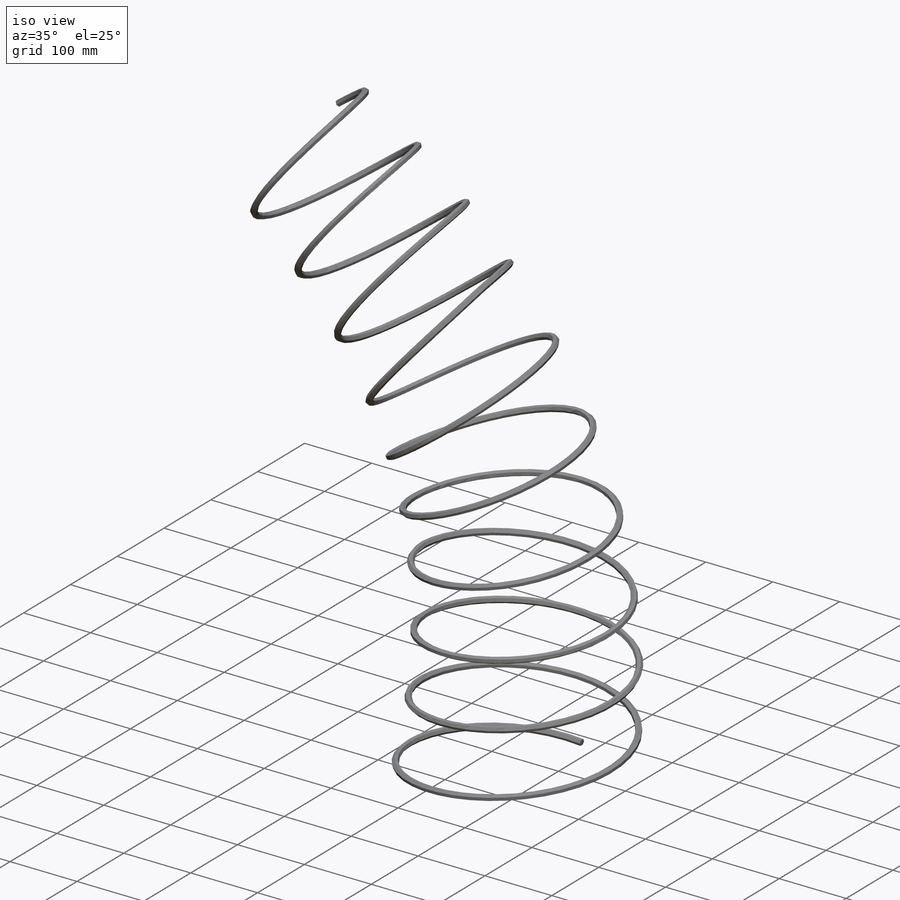
[diagram: iso view]
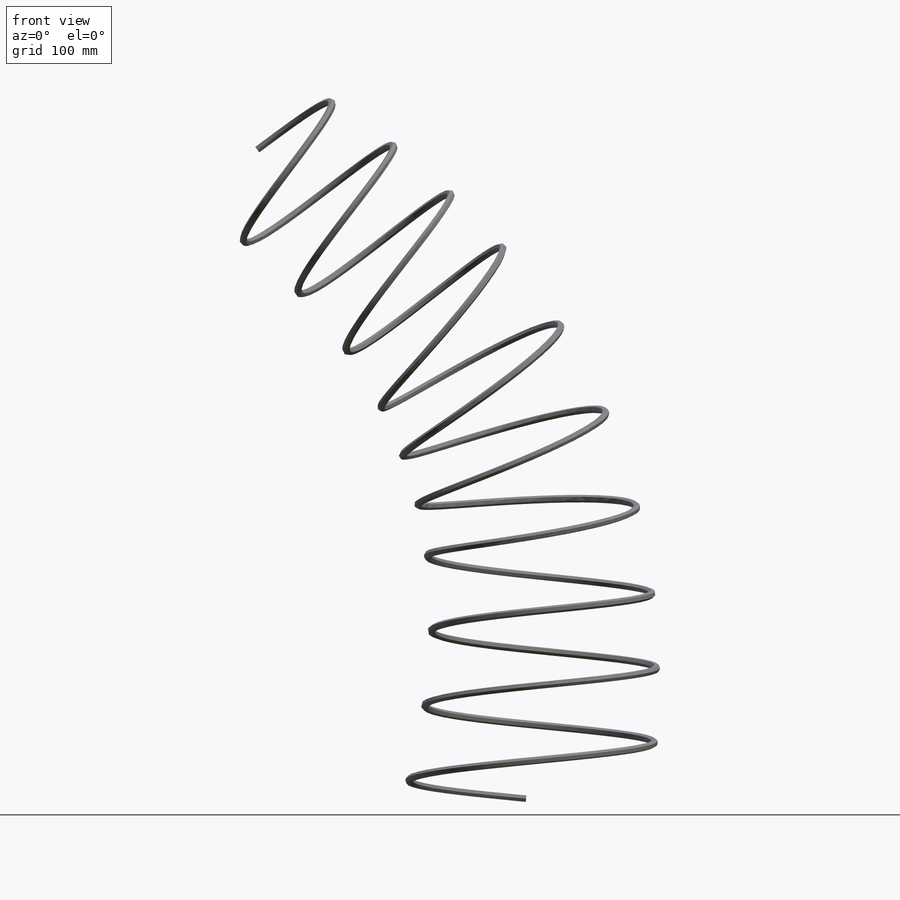
[diagram: front view]
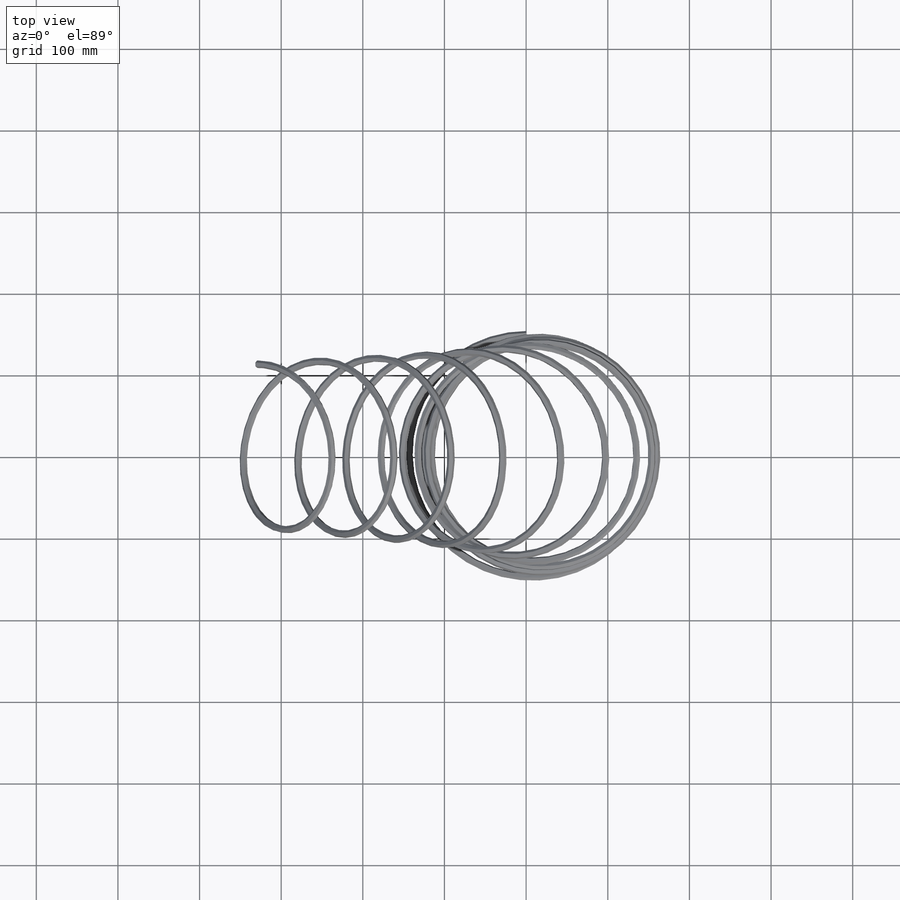
[diagram: top view]
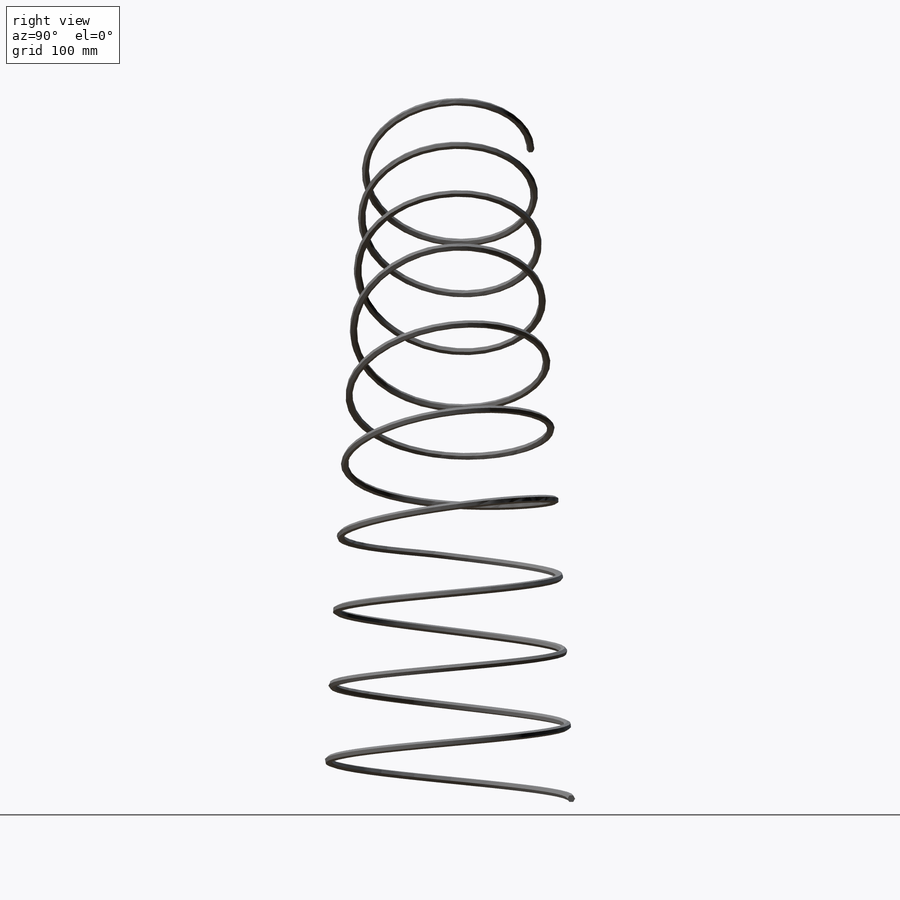
[diagram: right view]
SOLIDWORKS PART (.sldprt)
format: sldprt  version: not decoded by parser v0  size: 941,568 bytes
history: native  units: mm
features: sketch x7, plane x3, delete_body x2, material x1, sweep x1 (+12 scaffold rows collapsed)
feature tree (26):
  scaffold x12  (default folders/planes/origin — collapsed)
  material  "Material <not specified>"
  sketch  "Sketch1"  dims[c1.D3=400.0mm c1.D1=300.0mm c1.D2=300.0mm c1.D4=300.0mm c2.D4=45.0deg]
  sketch  "Sketch2"  dims[c1.D1=175.0mm c1.D2=175.0mm c2.D1=3600.0deg]
  plane  "Plane1"
  plane  "Plane2"
  sketch  "Sketch3"  dims[D1=300.0mm]
  sketch  "Sketch4"  dims[D1=200.0mm]
  sketch  "Sketch5"  dims[D1=250.0mm]
  sketch  "Sketch6"
  delete_body  "Body-Delete1"
  plane  "Plane3"
  sketch  "Sketch7"  dims[D1=8.0mm]
  sweep  "Sweep1"
  delete_body  "Body-Delete2"
decode coverage: 6 of 10 modeling features carry decoded parameters
note: suppression state not decoded; provenance and decode notes live in map.json
